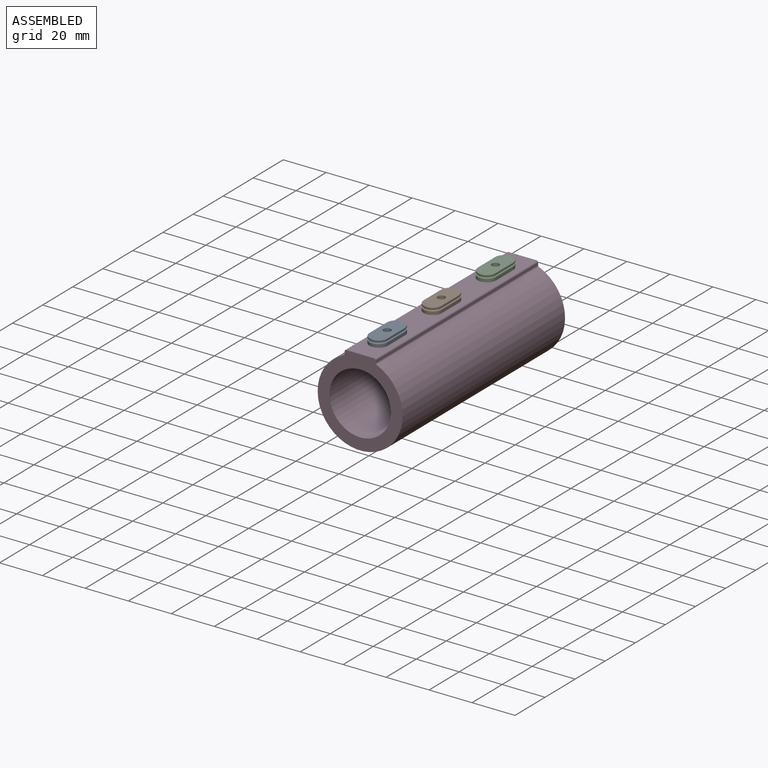
[diagram: assembled view]
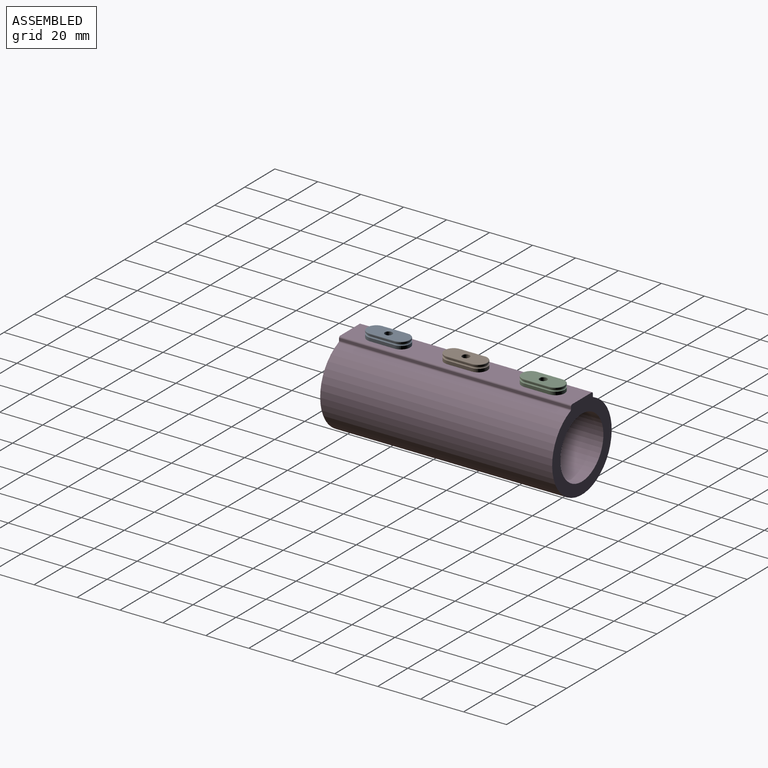
[diagram: assembled view, second angle]
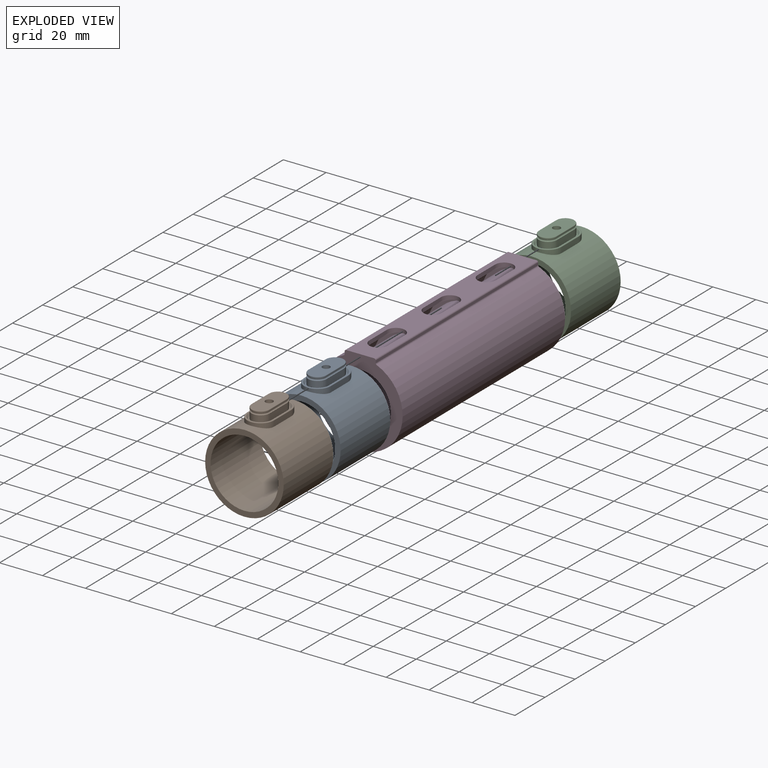
[diagram: exploded view]
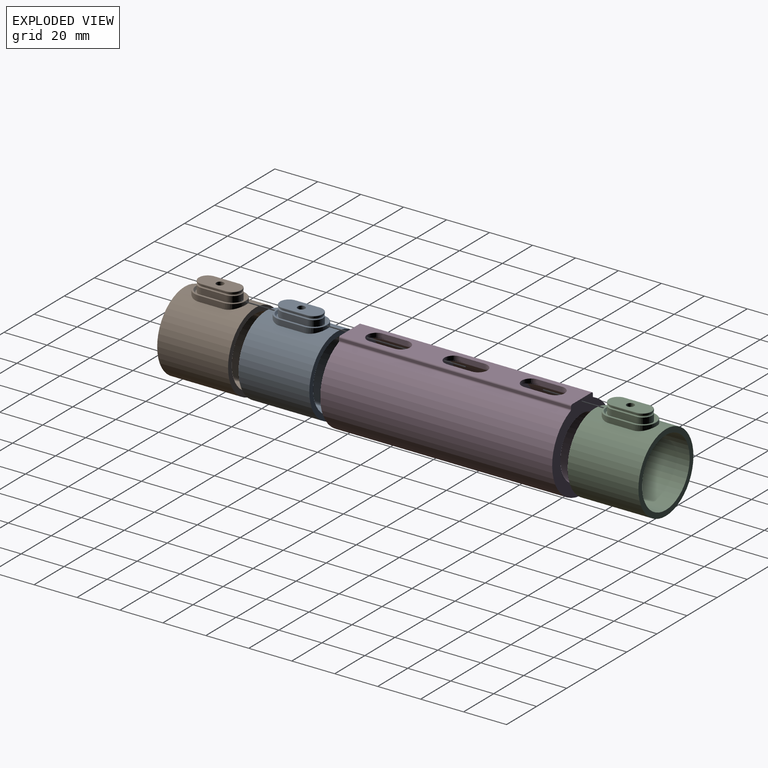
[diagram: exploded view, second angle]
ASSEMBLY  parts=4 mates=3
PART A: 40 faces, bbox 36.6x33x42.3 mm
  f0: cylinder r=15.79mm len=33mm, axis (0,1,0), area 3263.8mm2, adj f2,f3,f39
  f1: cylinder r=18.29mm len=36.58mm, axis (0,1,0), area 3520.5mm2, adj f2,f3,f4,f5,f6,f7
  f2: plane 36.58x36.58mm, normal (0,-1,0), area 267.6mm2, adj f0,f1
  f3: plane 36.58x36.58mm, normal (0,1,0), area 267.6mm2, adj f0,f1
  f4: cylinder r=6.25mm len=12.5mm, axis (0,0,1), area 39.4mm2, adj f1,f5,f7,f33
  f5: plane 11.5x2.56mm, normal (-1,0,0), area 29.5mm2, adj f1,f4,f6,f34
  f6: cylinder r=6.25mm len=12.5mm, axis (0,0,1), area 39.4mm2, adj f1,f5,f7,f32
  f7: plane 11.5x2.56mm, normal (1,0,0), area 29.5mm2, adj f1,f4,f6,f31
  f8: plane 23.5x12mm, normal (0,0,1), area 22.3mm2, adj f27,f28,f29,f30,f31,f32,f33,f34
  f9: cone r=5.5mm half-angle=36.9deg, axis (0,0,1), area 18mm2, adj f10,f12,f13,f30
  f10: plane 11.5x0.9mm, normal (-0.8,0,0.6), area 12.9mm2, adj f9,f11,f12,f28
  f11: cone r=5.5mm half-angle=36.9deg, axis (0,0,1), area 18mm2, adj f10,f12,f13,f27
  f12: plane 21x9.5mm, normal (0,0,1), area 25.6mm2, adj f9,f10,f11,f13,f14,f15,f16,f17
  f13: plane 11.5x0.9mm, normal (0.8,0,0.6), area 12.9mm2, adj f9,f11,f12,f29
  f14: plane 11.5x3.25mm, normal (1,0,0), area 37.4mm2, adj f12,f16,f17,f18
  f15: plane 11.5x3.25mm, normal (-1,0,0), area 37.4mm2, adj f12,f16,f17,f21
  f16: cylinder r=4.25mm len=8.5mm, axis (0,0,-1), area 43.4mm2, adj f12,f14,f15,f20
  f17: cylinder r=4.25mm len=8.5mm, axis (0,0,1), area 43.4mm2, adj f12,f14,f15,f19
  f18: cylinder r=0.5mm len=11.5mm, axis (0,1,0), area 18.1mm2, adj f14,f19,f20,f24
  f19: torus R=4.25mm, axis (0,0,1), area 19.4mm2, adj f17,f18,f21,f26
  f20: torus R=4.25mm, axis (0,0,1), area 19.4mm2, adj f16,f18,f21,f25
  f21: cylinder r=0.5mm len=11.5mm, axis (0,-1,0), area 18.1mm2, adj f15,f19,f20,f23
  f22: plane 19.5x8mm, normal (0,0,1), area 132.6mm2, adj f35,f36,f37,f38,f39
  f23: plane 11.5x0.5mm, normal (-1,0,0), area 5.8mm2, adj f21,f25,f26,f37
  f24: plane 11.5x0.5mm, normal (1,0,0), area 5.8mm2, adj f18,f25,f26,f36
  f25: cylinder r=4.25mm len=8.5mm, axis (0,0,-1), area 6.7mm2, adj f20,f23,f24,f35
  f26: cylinder r=4.25mm len=8.5mm, axis (0,0,1), area 6.7mm2, adj f19,f23,f24,f38
  f27: torus R=5.62mm, axis (0,0,1), area 4mm2, adj f8,f11,f28,f29
  f28: cylinder r=0.25mm len=11.5mm, axis (0,-1,0), area 2.7mm2, adj f8,f10,f27,f30
  f29: cylinder r=0.25mm len=11.5mm, axis (0,1,0), area 2.7mm2, adj f8,f13,f27,f30
  f30: torus R=5.62mm, axis (0,0,1), area 4mm2, adj f8,f9,f28,f29
  f31: cylinder r=0.25mm len=11.5mm, axis (0,1,0), area 4.5mm2, adj f7,f8,f32,f33
  f32: torus R=6mm, axis (0,0,1), area 7.6mm2, adj f6,f8,f31,f34
  f33: torus R=6mm, axis (0,0,1), area 7.6mm2, adj f4,f8,f31,f34
  f34: cylinder r=0.25mm len=11.5mm, axis (0,-1,0), area 4.5mm2, adj f5,f8,f32,f33
  f35: torus R=4mm, axis (0,0,1), area 5.1mm2, adj f22,f25,f36,f37
  f36: cylinder r=0.25mm len=11.5mm, axis (0,1,0), area 4.5mm2, adj f22,f24,f35,f38
  f37: cylinder r=0.25mm len=11.5mm, axis (0,-1,0), area 4.5mm2, adj f22,f23,f35,f38
  f38: torus R=4mm, axis (0,0,1), area 5.1mm2, adj f22,f26,f36,f37
  f39: cylinder r=1.75mm len=8.31mm, axis (0,0,-1), area 90.8mm2, adj f0,f22
PART B: 40 faces, bbox 36.6x33x42.3 mm
  f0: cylinder r=15.79mm len=33mm, axis (0,1,0), area 3263.8mm2, adj f2,f3,f39
  f1: cylinder r=18.29mm len=36.58mm, axis (0,1,0), area 3520.5mm2, adj f2,f3,f4,f5,f6,f7
  f2: plane 36.58x36.58mm, normal (0,-1,0), area 267.6mm2, adj f0,f1
  f3: plane 36.58x36.58mm, normal (0,1,0), area 267.6mm2, adj f0,f1
  f4: cylinder r=6.25mm len=12.5mm, axis (0,0,1), area 39.4mm2, adj f1,f5,f7,f33
  f5: plane 11.5x2.56mm, normal (-1,0,0), area 29.5mm2, adj f1,f4,f6,f34
  f6: cylinder r=6.25mm len=12.5mm, axis (0,0,1), area 39.4mm2, adj f1,f5,f7,f32
  f7: plane 11.5x2.56mm, normal (1,0,0), area 29.5mm2, adj f1,f4,f6,f31
  f8: plane 23.5x12mm, normal (0,0,1), area 22.3mm2, adj f27,f28,f29,f30,f31,f32,f33,f34
  f9: cone r=5.5mm half-angle=36.9deg, axis (0,0,1), area 18mm2, adj f10,f12,f13,f30
  f10: plane 11.5x0.9mm, normal (-0.8,0,0.6), area 12.9mm2, adj f9,f11,f12,f28
  f11: cone r=5.5mm half-angle=36.9deg, axis (0,0,1), area 18mm2, adj f10,f12,f13,f27
  f12: plane 21x9.5mm, normal (0,0,1), area 25.6mm2, adj f9,f10,f11,f13,f14,f15,f16,f17
  f13: plane 11.5x0.9mm, normal (0.8,0,0.6), area 12.9mm2, adj f9,f11,f12,f29
  f14: plane 11.5x3.25mm, normal (1,0,0), area 37.4mm2, adj f12,f16,f17,f18
  f15: plane 11.5x3.25mm, normal (-1,0,0), area 37.4mm2, adj f12,f16,f17,f21
  f16: cylinder r=4.25mm len=8.5mm, axis (0,0,-1), area 43.4mm2, adj f12,f14,f15,f20
  f17: cylinder r=4.25mm len=8.5mm, axis (0,0,1), area 43.4mm2, adj f12,f14,f15,f19
  f18: cylinder r=0.5mm len=11.5mm, axis (0,1,0), area 18.1mm2, adj f14,f19,f20,f24
  f19: torus R=4.25mm, axis (0,0,1), area 19.4mm2, adj f17,f18,f21,f26
  f20: torus R=4.25mm, axis (0,0,1), area 19.4mm2, adj f16,f18,f21,f25
  f21: cylinder r=0.5mm len=11.5mm, axis (0,-1,0), area 18.1mm2, adj f15,f19,f20,f23
  f22: plane 19.5x8mm, normal (0,0,1), area 132.6mm2, adj f35,f36,f37,f38,f39
  f23: plane 11.5x0.5mm, normal (-1,0,0), area 5.8mm2, adj f21,f25,f26,f37
  f24: plane 11.5x0.5mm, normal (1,0,0), area 5.8mm2, adj f18,f25,f26,f36
  f25: cylinder r=4.25mm len=8.5mm, axis (0,0,-1), area 6.7mm2, adj f20,f23,f24,f35
  f26: cylinder r=4.25mm len=8.5mm, axis (0,0,1), area 6.7mm2, adj f19,f23,f24,f38
  f27: torus R=5.62mm, axis (0,0,1), area 4mm2, adj f8,f11,f28,f29
  f28: cylinder r=0.25mm len=11.5mm, axis (0,-1,0), area 2.7mm2, adj f8,f10,f27,f30
  f29: cylinder r=0.25mm len=11.5mm, axis (0,1,0), area 2.7mm2, adj f8,f13,f27,f30
  f30: torus R=5.62mm, axis (0,0,1), area 4mm2, adj f8,f9,f28,f29
  f31: cylinder r=0.25mm len=11.5mm, axis (0,1,0), area 4.5mm2, adj f7,f8,f32,f33
  f32: torus R=6mm, axis (0,0,1), area 7.6mm2, adj f6,f8,f31,f34
  f33: torus R=6mm, axis (0,0,1), area 7.6mm2, adj f4,f8,f31,f34
  f34: cylinder r=0.25mm len=11.5mm, axis (0,-1,0), area 4.5mm2, adj f5,f8,f32,f33
  f35: torus R=4mm, axis (0,0,1), area 5.1mm2, adj f22,f25,f36,f37
  f36: cylinder r=0.25mm len=11.5mm, axis (0,1,0), area 4.5mm2, adj f22,f24,f35,f38
  f37: cylinder r=0.25mm len=11.5mm, axis (0,-1,0), area 4.5mm2, adj f22,f23,f35,f38
  f38: torus R=4mm, axis (0,0,1), area 5.1mm2, adj f22,f26,f36,f37
  f39: cylinder r=1.75mm len=8.31mm, axis (0,0,-1), area 90.8mm2, adj f0,f22
PART C: 40 faces, bbox 36.6x33x42.3 mm
  f0: cylinder r=15.79mm len=33mm, axis (0,1,0), area 3263.8mm2, adj f2,f3,f39
  f1: cylinder r=18.29mm len=36.58mm, axis (0,1,0), area 3520.5mm2, adj f2,f3,f4,f5,f6,f7
  f2: plane 36.58x36.58mm, normal (0,-1,0), area 267.6mm2, adj f0,f1
  f3: plane 36.58x36.58mm, normal (0,1,0), area 267.6mm2, adj f0,f1
  f4: cylinder r=6.25mm len=12.5mm, axis (0,0,1), area 39.4mm2, adj f1,f5,f7,f33
  f5: plane 11.5x2.56mm, normal (-1,0,0), area 29.5mm2, adj f1,f4,f6,f34
  f6: cylinder r=6.25mm len=12.5mm, axis (0,0,1), area 39.4mm2, adj f1,f5,f7,f32
  f7: plane 11.5x2.56mm, normal (1,0,0), area 29.5mm2, adj f1,f4,f6,f31
  f8: plane 23.5x12mm, normal (0,0,1), area 22.3mm2, adj f27,f28,f29,f30,f31,f32,f33,f34
  f9: cone r=5.5mm half-angle=36.9deg, axis (0,0,1), area 18mm2, adj f10,f12,f13,f30
  f10: plane 11.5x0.9mm, normal (-0.8,0,0.6), area 12.9mm2, adj f9,f11,f12,f28
  f11: cone r=5.5mm half-angle=36.9deg, axis (0,0,1), area 18mm2, adj f10,f12,f13,f27
  f12: plane 21x9.5mm, normal (0,0,1), area 25.6mm2, adj f9,f10,f11,f13,f14,f15,f16,f17
  f13: plane 11.5x0.9mm, normal (0.8,0,0.6), area 12.9mm2, adj f9,f11,f12,f29
  f14: plane 11.5x3.25mm, normal (1,0,0), area 37.4mm2, adj f12,f16,f17,f18
  f15: plane 11.5x3.25mm, normal (-1,0,0), area 37.4mm2, adj f12,f16,f17,f21
  f16: cylinder r=4.25mm len=8.5mm, axis (0,0,-1), area 43.4mm2, adj f12,f14,f15,f20
  f17: cylinder r=4.25mm len=8.5mm, axis (0,0,1), area 43.4mm2, adj f12,f14,f15,f19
  f18: cylinder r=0.5mm len=11.5mm, axis (0,1,0), area 18.1mm2, adj f14,f19,f20,f24
  f19: torus R=4.25mm, axis (0,0,1), area 19.4mm2, adj f17,f18,f21,f26
  f20: torus R=4.25mm, axis (0,0,1), area 19.4mm2, adj f16,f18,f21,f25
  f21: cylinder r=0.5mm len=11.5mm, axis (0,-1,0), area 18.1mm2, adj f15,f19,f20,f23
  f22: plane 19.5x8mm, normal (0,0,1), area 132.6mm2, adj f35,f36,f37,f38,f39
  f23: plane 11.5x0.5mm, normal (-1,0,0), area 5.8mm2, adj f21,f25,f26,f37
  f24: plane 11.5x0.5mm, normal (1,0,0), area 5.8mm2, adj f18,f25,f26,f36
  f25: cylinder r=4.25mm len=8.5mm, axis (0,0,-1), area 6.7mm2, adj f20,f23,f24,f35
  f26: cylinder r=4.25mm len=8.5mm, axis (0,0,1), area 6.7mm2, adj f19,f23,f24,f38
  f27: torus R=5.62mm, axis (0,0,1), area 4mm2, adj f8,f11,f28,f29
  f28: cylinder r=0.25mm len=11.5mm, axis (0,-1,0), area 2.7mm2, adj f8,f10,f27,f30
  f29: cylinder r=0.25mm len=11.5mm, axis (0,1,0), area 2.7mm2, adj f8,f13,f27,f30
  f30: torus R=5.62mm, axis (0,0,1), area 4mm2, adj f8,f9,f28,f29
  f31: cylinder r=0.25mm len=11.5mm, axis (0,1,0), area 4.5mm2, adj f7,f8,f32,f33
  f32: torus R=6mm, axis (0,0,1), area 7.6mm2, adj f6,f8,f31,f34
  f33: torus R=6mm, axis (0,0,1), area 7.6mm2, adj f4,f8,f31,f34
  f34: cylinder r=0.25mm len=11.5mm, axis (0,-1,0), area 4.5mm2, adj f5,f8,f32,f33
  f35: torus R=4mm, axis (0,0,1), area 5.1mm2, adj f22,f25,f36,f37
  f36: cylinder r=0.25mm len=11.5mm, axis (0,1,0), area 4.5mm2, adj f22,f24,f35,f38
  f37: cylinder r=0.25mm len=11.5mm, axis (0,-1,0), area 4.5mm2, adj f22,f23,f35,f38
  f38: torus R=4mm, axis (0,0,1), area 5.1mm2, adj f22,f26,f36,f37
  f39: cylinder r=1.75mm len=8.31mm, axis (0,0,-1), area 90.8mm2, adj f0,f22
PART D: 89 faces, bbox 39.6x108x40.5 mm
  f0: plane 108x13mm, normal (0,0,1), area 940.5mm2, adj f5,f6,f21,f22,f23,f24,f47,f48
  f1: plane 108x1.08mm, normal (-1,0,0), area 117.1mm2, adj f5,f6,f85,f86
  f2: cylinder r=19.79mm len=108mm, axis (0,1,0), area 11717.3mm2, adj f5,f6,f86,f87
  f3: plane 108x1.08mm, normal (1,0,0), area 117.1mm2, adj f5,f6,f87,f88
  f4: cylinder r=14.29mm len=108mm, axis (0,1,0), area 9695.3mm2, adj f5,f6
  f5: plane 40.54x39.58mm, normal (0,-1,0), area 609.1mm2, adj f0,f1,f2,f3,f4,f85,f86,f87
  f6: plane 40.54x39.58mm, normal (0,1,0), area 609.1mm2, adj f0,f1,f2,f3,f4,f85,f86,f87
  f7: cylinder r=18.29mm len=36.58mm, axis (0,1,0), area 3520.5mm2, adj f9,f10,f11,f12,f13,f14
  f8: cylinder r=15.79mm len=33mm, axis (0,1,0), area 3273.5mm2, adj f9,f10
  f9: plane 36.58x36.58mm, normal (0,1,0), area 267.6mm2, adj f7,f8
  f10: plane 36.58x36.58mm, normal (0,-1,0), area 267.6mm2, adj f7,f8
  f11: cylinder r=6.25mm len=12.5mm, axis (0,0,1), area 39.4mm2, adj f7,f12,f14,f31
  f12: plane 11.5x2.56mm, normal (1,0,0), area 29.5mm2, adj f7,f11,f13,f32
  f13: cylinder r=6.25mm len=12.5mm, axis (0,0,1), area 39.4mm2, adj f7,f12,f14,f30
  f14: plane 11.5x2.56mm, normal (-1,0,0), area 29.5mm2, adj f7,f11,f13,f29
  f15: plane 23.5x12mm, normal (0,0,-1), area 22.3mm2, adj f25,f26,f27,f28,f29,f30,f31,f32
  f16: cone r=5.5mm half-angle=36.9deg, axis (0,0,1), area 18mm2, adj f17,f19,f20,f28
  f17: plane 11.5x0.9mm, normal (0.8,0,-0.6), area 12.9mm2, adj f16,f18,f19,f26
  f18: cone r=5.5mm half-angle=36.9deg, axis (0,0,1), area 18mm2, adj f17,f19,f20,f25
  f19: plane 21x9.5mm, normal (0,0,-1), area 25.6mm2, adj f16,f17,f18,f20,f21,f22,f23,f24
  f20: plane 11.5x0.9mm, normal (-0.8,0,-0.6), area 12.9mm2, adj f16,f18,f19,f27
  f21: plane 11.5x1.75mm, normal (-1,0,0), area 20.1mm2, adj f0,f19,f23,f24
  f22: plane 11.5x1.75mm, normal (1,0,0), area 20.1mm2, adj f0,f19,f23,f24
  f23: cylinder r=4.25mm len=8.5mm, axis (0,0,-1), area 23.4mm2, adj f0,f19,f21,f22
  f24: cylinder r=4.25mm len=8.5mm, axis (0,0,1), area 23.4mm2, adj f0,f19,f21,f22
  f25: torus R=5.62mm, axis (0,0,1), area 4mm2, adj f15,f18,f26,f27
  f26: cylinder r=0.25mm len=11.5mm, axis (0,-1,0), area 2.7mm2, adj f15,f17,f25,f28
  f27: cylinder r=0.25mm len=11.5mm, axis (0,1,0), area 2.7mm2, adj f15,f20,f25,f28
  f28: torus R=5.62mm, axis (0,0,1), area 4mm2, adj f15,f16,f26,f27
  f29: cylinder r=0.25mm len=11.5mm, axis (0,1,0), area 4.5mm2, adj f14,f15,f30,f31
  f30: torus R=6mm, axis (0,0,1), area 7.6mm2, adj f13,f15,f29,f32
  f31: torus R=6mm, axis (0,0,1), area 7.6mm2, adj f11,f15,f29,f32
  f32: cylinder r=0.25mm len=11.5mm, axis (0,-1,0), area 4.5mm2, adj f12,f15,f30,f31
  f33: cylinder r=18.29mm len=36.58mm, axis (0,1,0), area 3520.5mm2, adj f35,f36,f37,f38,f39,f40
  f34: cylinder r=15.79mm len=33mm, axis (0,1,0), area 3273.5mm2, adj f35,f36
  f35: plane 36.58x36.58mm, normal (0,1,0), area 267.6mm2, adj f33,f34
  f36: plane 36.58x36.58mm, normal (0,-1,0), area 267.6mm2, adj f33,f34
  f37: cylinder r=6.25mm len=12.5mm, axis (0,0,1), area 39.4mm2, adj f33,f38,f40,f57
  f38: plane 11.5x2.56mm, normal (1,0,0), area 29.5mm2, adj f33,f37,f39,f58
  f39: cylinder r=6.25mm len=12.5mm, axis (0,0,1), area 39.4mm2, adj f33,f38,f40,f56
  f40: plane 11.5x2.56mm, normal (-1,0,0), area 29.5mm2, adj f33,f37,f39,f55
  f41: plane 23.5x12mm, normal (0,0,-1), area 22.3mm2, adj f51,f52,f53,f54,f55,f56,f57,f58
  f42: cone r=5.5mm half-angle=36.9deg, axis (0,0,1), area 18mm2, adj f43,f45,f46,f54
  f43: plane 11.5x0.9mm, normal (0.8,0,-0.6), area 12.9mm2, adj f42,f44,f45,f52
  f44: cone r=5.5mm half-angle=36.9deg, axis (0,0,1), area 18mm2, adj f43,f45,f46,f51
  f45: plane 21x9.5mm, normal (0,0,-1), area 25.6mm2, adj f42,f43,f44,f46,f47,f48,f49,f50
  f46: plane 11.5x0.9mm, normal (-0.8,0,-0.6), area 12.9mm2, adj f42,f44,f45,f53
  f47: plane 11.5x1.75mm, normal (-1,0,0), area 20.1mm2, adj f0,f45,f49,f50
  f48: plane 11.5x1.75mm, normal (1,0,0), area 20.1mm2, adj f0,f45,f49,f50
  f49: cylinder r=4.25mm len=8.5mm, axis (0,0,-1), area 23.4mm2, adj f0,f45,f47,f48
  f50: cylinder r=4.25mm len=8.5mm, axis (0,0,1), area 23.4mm2, adj f0,f45,f47,f48
  f51: torus R=5.62mm, axis (0,0,1), area 4mm2, adj f41,f44,f52,f53
  f52: cylinder r=0.25mm len=11.5mm, axis (0,-1,0), area 2.7mm2, adj f41,f43,f51,f54
  f53: cylinder r=0.25mm len=11.5mm, axis (0,1,0), area 2.7mm2, adj f41,f46,f51,f54
  f54: torus R=5.62mm, axis (0,0,1), area 4mm2, adj f41,f42,f52,f53
  f55: cylinder r=0.25mm len=11.5mm, axis (0,1,0), area 4.5mm2, adj f40,f41,f56,f57
  f56: torus R=6mm, axis (0,0,1), area 7.6mm2, adj f39,f41,f55,f58
  f57: torus R=6mm, axis (0,0,1), area 7.6mm2, adj f37,f41,f55,f58
  f58: cylinder r=0.25mm len=11.5mm, axis (0,-1,0), area 4.5mm2, adj f38,f41,f56,f57
  f59: cylinder r=18.29mm len=36.58mm, axis (0,1,0), area 3520.5mm2, adj f61,f62,f63,f64,f65,f66
  f60: cylinder r=15.79mm len=33mm, axis (0,1,0), area 3273.5mm2, adj f61,f62
  f61: plane 36.58x36.58mm, normal (0,1,0), area 267.6mm2, adj f59,f60
  f62: plane 36.58x36.58mm, normal (0,-1,0), area 267.6mm2, adj f59,f60
  f63: cylinder r=6.25mm len=12.5mm, axis (0,0,1), area 39.4mm2, adj f59,f64,f66,f83
  f64: plane 11.5x2.56mm, normal (1,0,0), area 29.5mm2, adj f59,f63,f65,f84
  f65: cylinder r=6.25mm len=12.5mm, axis (0,0,1), area 39.4mm2, adj f59,f64,f66,f82
  f66: plane 11.5x2.56mm, normal (-1,0,0), area 29.5mm2, adj f59,f63,f65,f81
  f67: plane 23.5x12mm, normal (0,0,-1), area 22.3mm2, adj f77,f78,f79,f80,f81,f82,f83,f84
  f68: cone r=5.5mm half-angle=36.9deg, axis (0,0,1), area 18mm2, adj f69,f71,f72,f80
  f69: plane 11.5x0.9mm, normal (0.8,0,-0.6), area 12.9mm2, adj f68,f70,f71,f78
  f70: cone r=5.5mm half-angle=36.9deg, axis (0,0,1), area 18mm2, adj f69,f71,f72,f77
  f71: plane 21x9.5mm, normal (0,0,-1), area 25.6mm2, adj f68,f69,f70,f72,f73,f74,f75,f76
  f72: plane 11.5x0.9mm, normal (-0.8,0,-0.6), area 12.9mm2, adj f68,f70,f71,f79
  f73: plane 11.5x1.75mm, normal (-1,0,0), area 20.1mm2, adj f0,f71,f75,f76
  f74: plane 11.5x1.75mm, normal (1,0,0), area 20.1mm2, adj f0,f71,f75,f76
  f75: cylinder r=4.25mm len=8.5mm, axis (0,0,-1), area 23.4mm2, adj f0,f71,f73,f74
  f76: cylinder r=4.25mm len=8.5mm, axis (0,0,1), area 23.4mm2, adj f0,f71,f73,f74
  f77: torus R=5.62mm, axis (0,0,1), area 4mm2, adj f67,f70,f78,f79
  f78: cylinder r=0.25mm len=11.5mm, axis (0,-1,0), area 2.7mm2, adj f67,f69,f77,f80
  f79: cylinder r=0.25mm len=11.5mm, axis (0,1,0), area 2.7mm2, adj f67,f72,f77,f80
  f80: torus R=5.62mm, axis (0,0,1), area 4mm2, adj f67,f68,f78,f79
  f81: cylinder r=0.25mm len=11.5mm, axis (0,1,0), area 4.5mm2, adj f66,f67,f82,f83
  f82: torus R=6mm, axis (0,0,1), area 7.6mm2, adj f65,f67,f81,f84
  f83: torus R=6mm, axis (0,0,1), area 7.6mm2, adj f63,f67,f81,f84
  f84: cylinder r=0.25mm len=11.5mm, axis (0,-1,0), area 4.5mm2, adj f64,f67,f82,f83
  f85: cylinder r=0.75mm len=108mm, axis (0,-1,0), area 127.2mm2, adj f0,f1,f5,f6
  f86: cylinder r=0.75mm len=108mm, axis (0,1,0), area 94.8mm2, adj f1,f2,f5,f6
  f87: cylinder r=0.75mm len=108mm, axis (0,1,0), area 94.8mm2, adj f2,f3,f5,f6
  f88: cylinder r=0.75mm len=108mm, axis (0,1,0), area 127.2mm2, adj f0,f3,f5,f6
PLACE A t=(-3.26,-7.22,-4)mm
PLACE B t=(-3.26,-7.22,-4)mm
PLACE C t=(-3.26,-7.22,-4)mm
PLACE D t=(-3.26,-7.22,-4)mm
MATE fastened B.f1 <-> D.f2  axis (0,1,0) through (-3.26,-7.22,-4)mm
MATE fastened C.f1 <-> D.f7  axis (0,1,0) through (-3.26,45.28,-4)mm
MATE fastened A.f1 <-> D.f7  axis (0,-1,0) through (-3.26,-59.72,-4)mm
